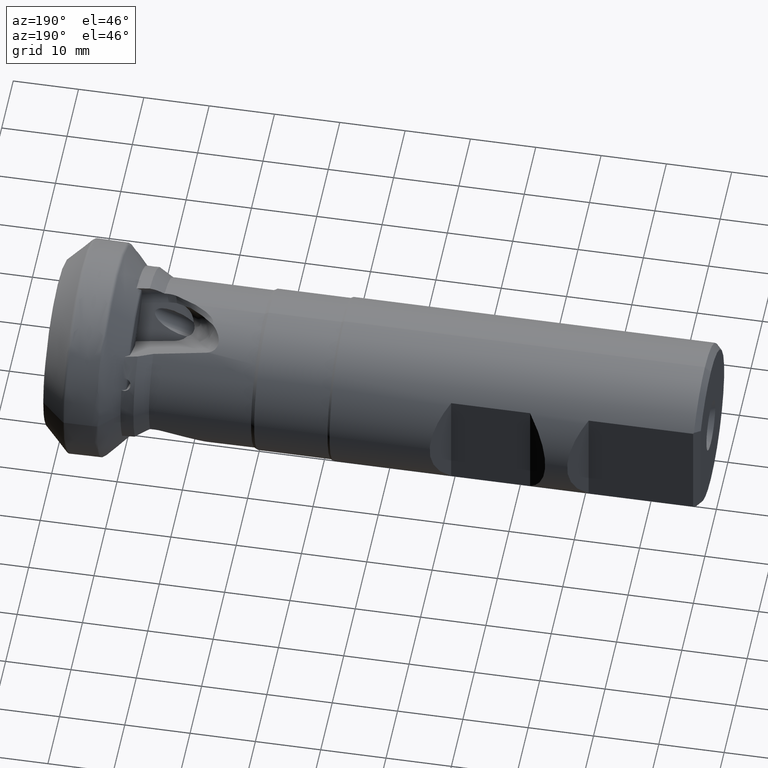
[diagram: clean part render]
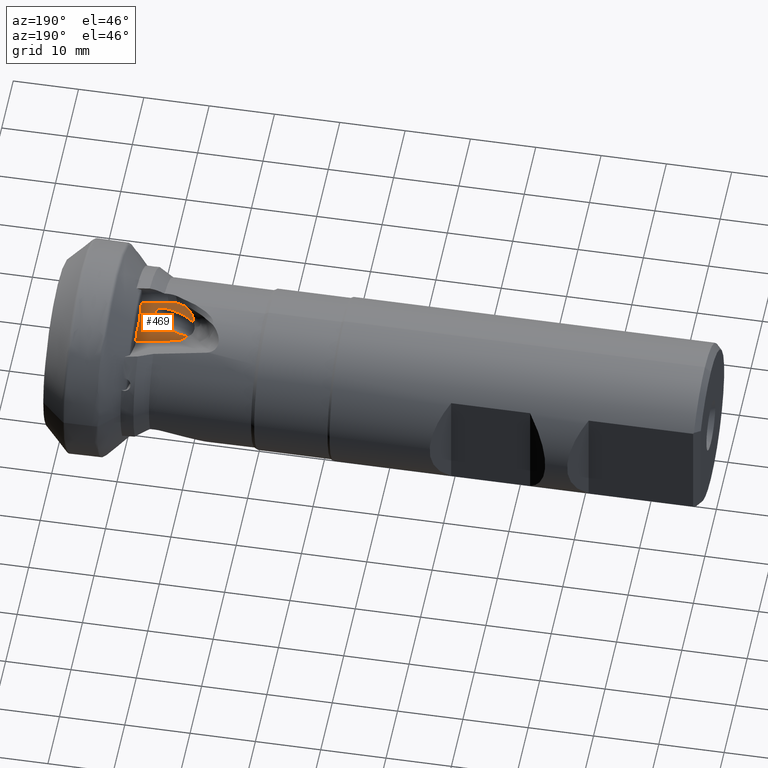
[diagram: same view with one face highlighted and labeled with its STEP entity id]
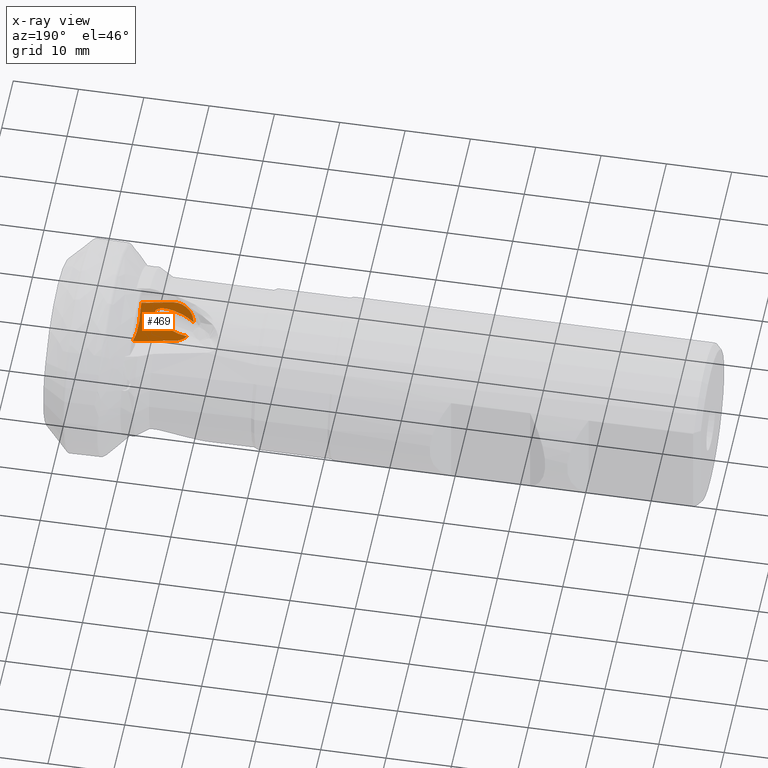
[diagram: x-ray of the same camera — body ghosted, the highlighted face saturated]
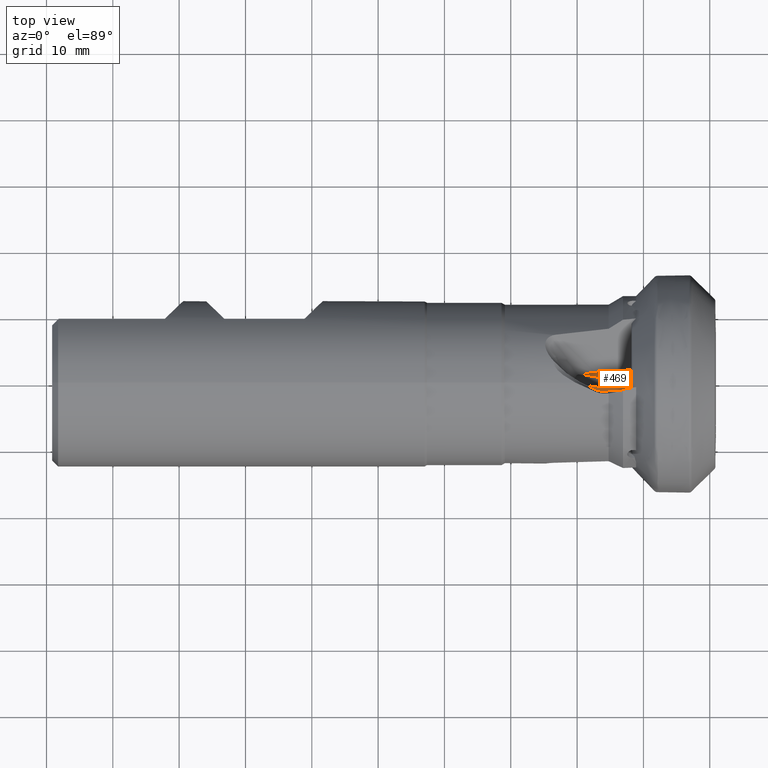
[diagram: same view with one face highlighted and labeled with its STEP entity id]
A machine part, auxiliary view. The second image highlights one B-rep face of the part: STEP entity #469.
The next image is the same camera in x-ray: the body ghosted, the highlighted face saturated — about 0% of this face is hidden behind the body in this view.
A second angle (top view) of the same face is appended — the face is thin or edge-on in the first view.
In plain terms, the highlighted planar face has unit normal (0, -0.866, -0.5).
Its self-contained STEP definition (entity closure, byte-faithful):
#61 = CARTESIAN_POINT ( 'NONE',  ( -17.92721154005521500, 1.151792894946105800, 6.265036186156461200 ) ) ;
#115 = CARTESIAN_POINT ( 'NONE',  ( -11.73626671486130300, 0.4645400740024259200, 7.455392989675940100 ) ) ;
#174 = CARTESIAN_POINT ( 'NONE',  ( -17.41751930288015200, 1.666065817681290400, 5.374289355022186000 ) ) ;
#208 = CARTESIAN_POINT ( 'NONE',  ( -19.99075263810435400, 0.06297911736939931800, 8.150916968900293800 ) ) ;
#272 = DIRECTION ( 'NONE',  ( 0.0000000000000000000, -0.8660254037844362700, -0.5000000000000040000 ) ) ;
#340 = VECTOR ( 'NONE', #5161, 1000.000000000000300 ) ;
#432 = EDGE_CURVE ( 'NONE', #1065, #1528, #4489, .T. ) ;
#469 = ADVANCED_FACE ( 'NONE', ( #5071 ), #1669, .F. ) ;
#521 = CARTESIAN_POINT ( 'NONE',  ( -11.64557962087890200, 1.113891380403877900, 6.330683535027406900 ) ) ;
#533 = CARTESIAN_POINT ( 'NONE',  ( -9.725155332816799000, -1.384151196673880900, 10.65742019799633400 ) ) ;
#577 = AXIS2_PLACEMENT_3D ( 'NONE', #4240, #1742, #4668 ) ;
#621 = AXIS2_PLACEMENT_3D ( 'NONE', #2762, #272, #3189 ) ;
#734 = CARTESIAN_POINT ( 'NONE',  ( -19.88947141776294800, 0.02429754097010627600, 8.217915424540724000 ) ) ;
#793 = CARTESIAN_POINT ( 'NONE',  ( -19.18235162077876400, 1.209903895877997500, 6.164384980063742200 ) ) ;
#892 = CARTESIAN_POINT ( 'NONE',  ( -16.51282833608821600, 0.8925007514673992700, 6.714143352665016300 ) ) ;
#937 = CARTESIAN_POINT ( 'NONE',  ( -11.23594637473793000, 1.874905121254411400, 5.012569070616240900 ) ) ;
#951 = CARTESIAN_POINT ( 'NONE',  ( -15.38195826628601100, 0.5131958635818169000, 7.371118690042052000 ) ) ;
#983 = EDGE_CURVE ( 'NONE', #1528, #5174, #3048, .T. ) ;
#1024 = ORIENTED_EDGE ( 'NONE', *, *, #2729, .F. ) ;
#1054 = EDGE_CURVE ( 'NONE', #3453, #1065, #4884, .T. ) ;
#1065 = VERTEX_POINT ( 'NONE', #2604 ) ;
#1158 = VERTEX_POINT ( 'NONE', #4724 ) ;
#1204 = VECTOR ( 'NONE', #3838, 1000.000000000000300 ) ;
#1330 = EDGE_CURVE ( 'NONE', #1158, #5174, #3601, .T. ) ;
#1336 = CARTESIAN_POINT ( 'NONE',  ( -11.79563111585283300, -0.9683644706704466200, 9.937256463445679700 ) ) ;
#1384 = CARTESIAN_POINT ( 'NONE',  ( -15.38195826628601100, 0.5131958635818169000, 7.371118690042052000 ) ) ;
#1393 = EDGE_LOOP ( 'NONE', ( #3556, #5310, #1024, #3758, #1560, #2517, #4538, #1636, #3887 ) ) ;
#1528 = VERTEX_POINT ( 'NONE', #2103 ) ;
#1560 = ORIENTED_EDGE ( 'NONE', *, *, #2561, .T. ) ;
#1636 = ORIENTED_EDGE ( 'NONE', *, *, #983, .F. ) ;
#1669 = PLANE ( 'NONE',  #3924 ) ;
#1742 = DIRECTION ( 'NONE',  ( 0.0000000000000000000, -0.8660254037844362700, -0.5000000000000040000 ) ) ;
#1756 = CARTESIAN_POINT ( 'NONE',  ( 27.97958239625091200, 1.826656383057698300, 5.096138336574038700 ) ) ;
#1809 = LINE ( 'NONE', #174, #340 ) ;
#1946 = CARTESIAN_POINT ( 'NONE',  ( -19.78256276366905600, -0.01392026783705178700, 8.284110611148678400 ) ) ;
#2089 = CARTESIAN_POINT ( 'NONE',  ( -17.00000000000000000, 0.1806637145689202800, 7.947081267282447600 ) ) ;
#2103 = CARTESIAN_POINT ( 'NONE',  ( -16.58248069711985200, -1.304738388543450300, 10.51987317954271000 ) ) ;
#2179 = CARTESIAN_POINT ( 'NONE',  ( -11.76305755164569300, -0.05635874833347784300, 8.357616215564514000 ) ) ;
#2214 = CARTESIAN_POINT ( 'NONE',  ( -14.01360143378560100, -1.948886351810279000, 11.63557017951285700 ) ) ;
#2234 = EDGE_CURVE ( 'NONE', #2262, #1158, #5075, .T. ) ;
#2262 = VERTEX_POINT ( 'NONE', #1384 ) ;
#2515 = DIRECTION ( 'NONE',  ( 1.000000000000000000, 0.0000000000000000000, 0.0000000000000000000 ) ) ;
#2517 = ORIENTED_EDGE ( 'NONE', *, *, #2234, .T. ) ;
#2561 = EDGE_CURVE ( 'NONE', #4741, #2262, #5238, .T. ) ;
#2602 = CARTESIAN_POINT ( 'NONE',  ( -11.74270881364814500, 0.3343074486672760700, 7.680962513559495400 ) ) ;
#2604 = CARTESIAN_POINT ( 'NONE',  ( -15.87899200744350600, -1.255303944718043600, 10.43425021119320000 ) ) ;
#2729 = EDGE_CURVE ( 'NONE', #3168, #4407, #1809, .T. ) ;
#2762 = CARTESIAN_POINT ( 'NONE',  ( -17.00000000000000000, 0.1806637145689202800, 7.947081267282447600 ) ) ;
#2821 = CARTESIAN_POINT ( 'NONE',  ( -19.67040436725481100, -0.05153929155457927200, 8.349268671558574400 ) ) ;
#2842 = B_SPLINE_CURVE_WITH_KNOTS ( 'NONE', 3,
 ( #1336, #3836, #4685, #2179, #5105, #2602, #115, #3029, #521, #3443, #937, #3851 ),
 .UNSPECIFIED., .F., .F.,
 ( 4, 2, 2, 2, 2, 4 ),
 ( 0.0007507998149300515200, 0.002314754956384270400, 0.003096732527111377600, 0.003878710097838484300, 0.005442665239292696100, 0.007006620380746907800 ),
 .UNSPECIFIED. ) ;
#2860 = EDGE_CURVE ( 'NONE', #4741, #3168, #3393, .T. ) ;
#2977 = CARTESIAN_POINT ( 'NONE',  ( -19.18235162077876400, 1.209903895877997500, 6.164384980063742200 ) ) ;
#3029 = CARTESIAN_POINT ( 'NONE',  ( -11.69900384078807000, 0.8546822088203812600, 6.779646989997862900 ) ) ;
#3048 = CIRCLE ( 'NONE', #577, 2.999999999999999100 ) ;
#3168 = VERTEX_POINT ( 'NONE', #3819 ) ;
#3189 = DIRECTION ( 'NONE',  ( 1.000000000000000000, 0.0000000000000000000, 0.0000000000000000000 ) ) ;
#3393 = CIRCLE ( 'NONE', #621, 2.999999999999999100 ) ;
#3443 = CARTESIAN_POINT ( 'NONE',  ( -11.41226353219990700, 1.628391290384628700, 5.439543550451142900 ) ) ;
#3453 = VERTEX_POINT ( 'NONE', #3825 ) ;
#3556 = ORIENTED_EDGE ( 'NONE', *, *, #1054, .F. ) ;
#3601 =( BOUNDED_CURVE ( )  B_SPLINE_CURVE ( 3, ( #2821, #1946, #734, #3648 ),
 .UNSPECIFIED., .F., .T. ) 
 B_SPLINE_CURVE_WITH_KNOTS ( ( 4, 4 ),
 ( 2.061309334941230400, 2.180202278833203600 ),
 .UNSPECIFIED. ) 
 CURVE ( )  GEOMETRIC_REPRESENTATION_ITEM ( )  RATIONAL_B_SPLINE_CURVE ( ( 1.000000000000000000, 0.9988223858482323500, 0.9988223858482323500, 1.000000000000000000 ) ) 
 REPRESENTATION_ITEM ( '' )  );
#3648 = CARTESIAN_POINT ( 'NONE',  ( -19.99075263810435400, 0.06297911736939931800, 8.150916968900293800 ) ) ;
#3758 = ORIENTED_EDGE ( 'NONE', *, *, #2860, .F. ) ;
#3803 = CARTESIAN_POINT ( 'NONE',  ( -15.38195826628601100, 0.5131958635818169000, 7.371118690042052000 ) ) ;
#3819 = CARTESIAN_POINT ( 'NONE',  ( -17.41751930288015200, 1.666065817681290400, 5.374289355022186000 ) ) ;
#3825 = CARTESIAN_POINT ( 'NONE',  ( -11.79563111585283300, -0.9683644706704466200, 9.937256463445679700 ) ) ;
#3836 = CARTESIAN_POINT ( 'NONE',  ( -11.78947148921697000, -0.7077231920883710900, 9.485812526391635300 ) ) ;
#3838 = DIRECTION ( 'NONE',  ( -0.9902680687415723600, -0.06958655048002550200, 0.1205274409548593200 ) ) ;
#3851 = CARTESIAN_POINT ( 'NONE',  ( -11.02914635400314600, 2.114979450994726400, 4.596748133912973900 ) ) ;
#3879 = CARTESIAN_POINT ( 'NONE',  ( -11.02914635400314600, 2.114979450994726400, 4.596748133912973900 ) ) ;
#3887 = ORIENTED_EDGE ( 'NONE', *, *, #432, .F. ) ;
#3924 = AXIS2_PLACEMENT_3D ( 'NONE', #2089, #5020, #2515 ) ;
#4070 = EDGE_CURVE ( 'NONE', #3453, #4407, #2842, .T. ) ;
#4093 = VECTOR ( 'NONE', #4500, 1000.000000000000300 ) ;
#4240 = CARTESIAN_POINT ( 'NONE',  ( -17.00000000000000000, 0.1806637145689202800, 7.947081267282447600 ) ) ;
#4407 = VERTEX_POINT ( 'NONE', #3879 ) ;
#4489 = LINE ( 'NONE', #5354, #4093 ) ;
#4500 = DIRECTION ( 'NONE',  ( -0.9902680687415723600, -0.06958655048002550200, 0.1205274409548593200 ) ) ;
#4538 = ORIENTED_EDGE ( 'NONE', *, *, #1330, .T. ) ;
#4668 = DIRECTION ( 'NONE',  ( 1.000000000000000000, 0.0000000000000000000, 0.0000000000000000000 ) ) ;
#4685 = CARTESIAN_POINT ( 'NONE',  ( -11.78041400288386200, -0.4471176573902134700, 9.034430499560960100 ) ) ;
#4724 = CARTESIAN_POINT ( 'NONE',  ( -19.67040436725481100, -0.05153929155457927200, 8.349268671558574400 ) ) ;
#4741 = VERTEX_POINT ( 'NONE', #793 ) ;
#4884 = LINE ( 'NONE', #1756, #1204 ) ;
#5020 = DIRECTION ( 'NONE',  ( 0.0000000000000000000, -0.8660254037844363800, -0.5000000000000040000 ) ) ;
#5071 = FACE_OUTER_BOUND ( 'NONE', #1393, .T. ) ;
#5075 =( BOUNDED_CURVE ( )  B_SPLINE_CURVE ( 3, ( #951, #533, #2214, #5136 ),
 .UNSPECIFIED., .F., .T. ) 
 B_SPLINE_CURVE_WITH_KNOTS ( ( 4, 4 ),
 ( 5.202901988531023000, 8.344494642120816200 ),
 .UNSPECIFIED. ) 
 CURVE ( )  GEOMETRIC_REPRESENTATION_ITEM ( )  RATIONAL_B_SPLINE_CURVE ( ( 1.000000000000000000, 0.3333333333333333700, 0.3333333333333333700, 1.000000000000000000 ) ) 
 REPRESENTATION_ITEM ( '' )  );
#5105 = CARTESIAN_POINT ( 'NONE',  ( -11.75664569551126500, 0.07387481403033913100, 8.132045068699687500 ) ) ;
#5136 = CARTESIAN_POINT ( 'NONE',  ( -19.67040436725481100, -0.05153929155457927200, 8.349268671558574400 ) ) ;
#5161 = DIRECTION ( 'NONE',  ( 0.9902680687415723600, 0.06958655048002554400, -0.1205274409548594100 ) ) ;
#5174 = VERTEX_POINT ( 'NONE', #208 ) ;
#5238 =( BOUNDED_CURVE ( )  B_SPLINE_CURVE ( 3, ( #2977, #61, #892, #3803 ),
 .UNSPECIFIED., .F., .F. ) 
 B_SPLINE_CURVE_WITH_KNOTS ( ( 4, 4 ),
 ( 4.068770619894605600, 5.202901988531023000 ),
 .UNSPECIFIED. ) 
 CURVE ( )  GEOMETRIC_REPRESENTATION_ITEM ( )  RATIONAL_B_SPLINE_CURVE ( ( 1.000000000000000000, 0.8956538661360571300, 0.8956538661360571300, 1.000000000000000000 ) ) 
 REPRESENTATION_ITEM ( '' )  );
#5310 = ORIENTED_EDGE ( 'NONE', *, *, #4070, .T. ) ;
#5354 = CARTESIAN_POINT ( 'NONE',  ( 27.97958239625091200, 1.826656383057698300, 5.096138336574038700 ) ) ;